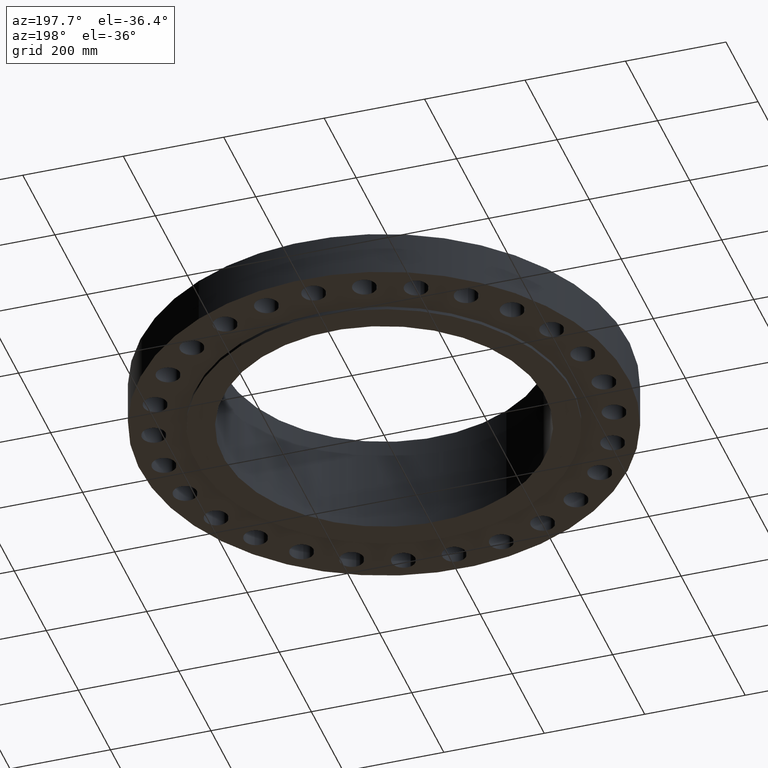
[diagram: clean part render]
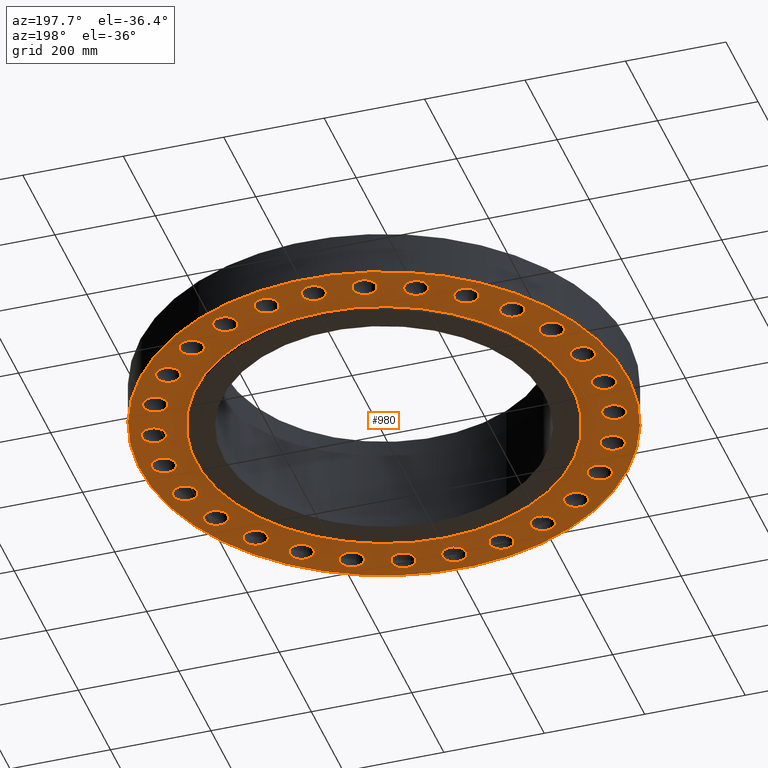
[diagram: same view with one face highlighted and labeled with its STEP entity id]
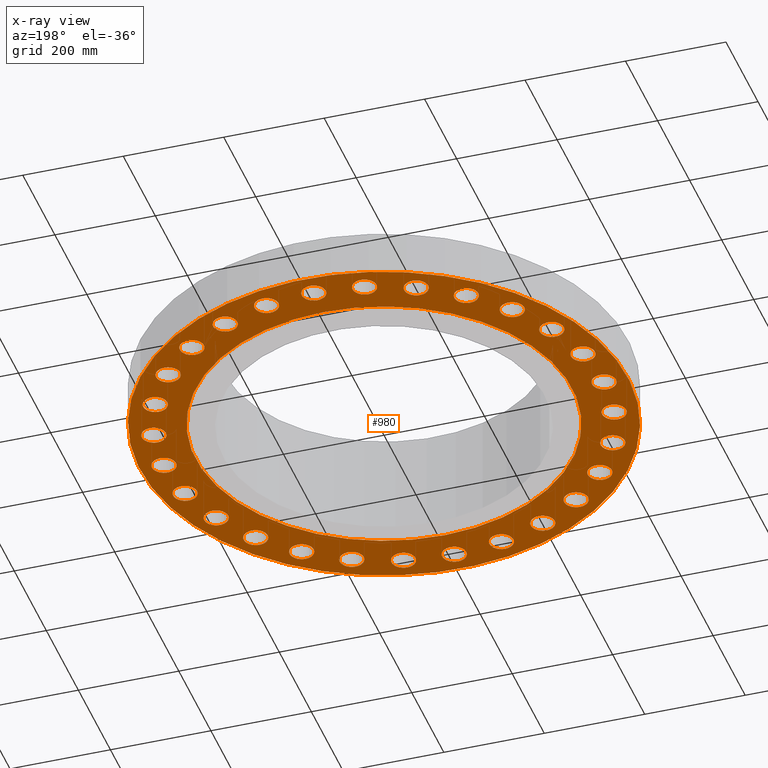
[diagram: x-ray of the same camera — body ghosted, the highlighted face saturated]
A machine part, auxiliary view. The second image highlights one B-rep face of the part: STEP entity #980.
The next image is the same camera in x-ray: the body ghosted, the highlighted face saturated — about 0% of this face is hidden behind the body in this view.
In plain terms, the highlighted planar face has unit normal (0, 0, -1).
Its self-contained STEP definition (entity closure, byte-faithful):
#51=AXIS2_PLACEMENT_3D('Circle Axis2P3D',#49,#50,$) ;
#77=AXIS2_PLACEMENT_3D('Circle Axis2P3D',#75,#76,$) ;
#99=AXIS2_PLACEMENT_3D('Circle Axis2P3D',#97,#98,$) ;
#134=AXIS2_PLACEMENT_3D('Circle Axis2P3D',#132,#133,$) ;
#448=AXIS2_PLACEMENT_3D('Circle Axis2P3D',#446,#447,$) ;
#467=AXIS2_PLACEMENT_3D('Circle Axis2P3D',#465,#466,$) ;
#480=AXIS2_PLACEMENT_3D('Plane Axis2P3D',#477,#478,#479) ;
#496=AXIS2_PLACEMENT_3D('Circle Axis2P3D',#494,#495,$) ;
#505=AXIS2_PLACEMENT_3D('Circle Axis2P3D',#503,#504,$) ;
#514=AXIS2_PLACEMENT_3D('Circle Axis2P3D',#512,#513,$) ;
#523=AXIS2_PLACEMENT_3D('Circle Axis2P3D',#521,#522,$) ;
#532=AXIS2_PLACEMENT_3D('Circle Axis2P3D',#530,#531,$) ;
#541=AXIS2_PLACEMENT_3D('Circle Axis2P3D',#539,#540,$) ;
#550=AXIS2_PLACEMENT_3D('Circle Axis2P3D',#548,#549,$) ;
#559=AXIS2_PLACEMENT_3D('Circle Axis2P3D',#557,#558,$) ;
#568=AXIS2_PLACEMENT_3D('Circle Axis2P3D',#566,#567,$) ;
#577=AXIS2_PLACEMENT_3D('Circle Axis2P3D',#575,#576,$) ;
#586=AXIS2_PLACEMENT_3D('Circle Axis2P3D',#584,#585,$) ;
#595=AXIS2_PLACEMENT_3D('Circle Axis2P3D',#593,#594,$) ;
#604=AXIS2_PLACEMENT_3D('Circle Axis2P3D',#602,#603,$) ;
#613=AXIS2_PLACEMENT_3D('Circle Axis2P3D',#611,#612,$) ;
#622=AXIS2_PLACEMENT_3D('Circle Axis2P3D',#620,#621,$) ;
#631=AXIS2_PLACEMENT_3D('Circle Axis2P3D',#629,#630,$) ;
#640=AXIS2_PLACEMENT_3D('Circle Axis2P3D',#638,#639,$) ;
#649=AXIS2_PLACEMENT_3D('Circle Axis2P3D',#647,#648,$) ;
#658=AXIS2_PLACEMENT_3D('Circle Axis2P3D',#656,#657,$) ;
#667=AXIS2_PLACEMENT_3D('Circle Axis2P3D',#665,#666,$) ;
#676=AXIS2_PLACEMENT_3D('Circle Axis2P3D',#674,#675,$) ;
#685=AXIS2_PLACEMENT_3D('Circle Axis2P3D',#683,#684,$) ;
#694=AXIS2_PLACEMENT_3D('Circle Axis2P3D',#692,#693,$) ;
#703=AXIS2_PLACEMENT_3D('Circle Axis2P3D',#701,#702,$) ;
#712=AXIS2_PLACEMENT_3D('Circle Axis2P3D',#710,#711,$) ;
#721=AXIS2_PLACEMENT_3D('Circle Axis2P3D',#719,#720,$) ;
#730=AXIS2_PLACEMENT_3D('Circle Axis2P3D',#728,#729,$) ;
#739=AXIS2_PLACEMENT_3D('Circle Axis2P3D',#737,#738,$) ;
#748=AXIS2_PLACEMENT_3D('Circle Axis2P3D',#746,#747,$) ;
#757=AXIS2_PLACEMENT_3D('Circle Axis2P3D',#755,#756,$) ;
#766=AXIS2_PLACEMENT_3D('Circle Axis2P3D',#764,#765,$) ;
#775=AXIS2_PLACEMENT_3D('Circle Axis2P3D',#773,#774,$) ;
#784=AXIS2_PLACEMENT_3D('Circle Axis2P3D',#782,#783,$) ;
#793=AXIS2_PLACEMENT_3D('Circle Axis2P3D',#791,#792,$) ;
#802=AXIS2_PLACEMENT_3D('Circle Axis2P3D',#800,#801,$) ;
#811=AXIS2_PLACEMENT_3D('Circle Axis2P3D',#809,#810,$) ;
#820=AXIS2_PLACEMENT_3D('Circle Axis2P3D',#818,#819,$) ;
#829=AXIS2_PLACEMENT_3D('Circle Axis2P3D',#827,#828,$) ;
#838=AXIS2_PLACEMENT_3D('Circle Axis2P3D',#836,#837,$) ;
#847=AXIS2_PLACEMENT_3D('Circle Axis2P3D',#845,#846,$) ;
#856=AXIS2_PLACEMENT_3D('Circle Axis2P3D',#854,#855,$) ;
#865=AXIS2_PLACEMENT_3D('Circle Axis2P3D',#863,#864,$) ;
#874=AXIS2_PLACEMENT_3D('Circle Axis2P3D',#872,#873,$) ;
#883=AXIS2_PLACEMENT_3D('Circle Axis2P3D',#881,#882,$) ;
#892=AXIS2_PLACEMENT_3D('Circle Axis2P3D',#890,#891,$) ;
#901=AXIS2_PLACEMENT_3D('Circle Axis2P3D',#899,#900,$) ;
#910=AXIS2_PLACEMENT_3D('Circle Axis2P3D',#908,#909,$) ;
#919=AXIS2_PLACEMENT_3D('Circle Axis2P3D',#917,#918,$) ;
#928=AXIS2_PLACEMENT_3D('Circle Axis2P3D',#926,#927,$) ;
#937=AXIS2_PLACEMENT_3D('Circle Axis2P3D',#935,#936,$) ;
#946=AXIS2_PLACEMENT_3D('Circle Axis2P3D',#944,#945,$) ;
#955=AXIS2_PLACEMENT_3D('Circle Axis2P3D',#953,#954,$) ;
#964=AXIS2_PLACEMENT_3D('Circle Axis2P3D',#962,#963,$) ;
#973=AXIS2_PLACEMENT_3D('Circle Axis2P3D',#971,#972,$) ;
#44=CARTESIAN_POINT('Vertex',(16.4250723919,0.45066000629,0.)) ;
#49=CARTESIAN_POINT('Axis2P3D Location',(17.2500000001,0.,0.)) ;
#53=CARTESIAN_POINT('Vertex',(18.0749276082,-0.45066000629,0.)) ;
#75=CARTESIAN_POINT('Axis2P3D Location',(17.2500000001,0.,0.)) ;
#97=CARTESIAN_POINT('Axis2P3D Location',(0.,0.,2.23792987641E-015)) ;
#101=CARTESIAN_POINT('Vertex',(-9.16901342584,-16.7837664962,2.23792987641E-015)) ;
#103=CARTESIAN_POINT('Vertex',(9.16901342584,16.7837664962,2.23792987641E-015)) ;
#132=CARTESIAN_POINT('Axis2P3D Location',(0.,0.,2.23792987641E-015)) ;
#443=CARTESIAN_POINT('Vertex',(-7.07152669444,-12.9443427879,1.1189649382E-015)) ;
#446=CARTESIAN_POINT('Axis2P3D Location',(0.,0.,1.67844740731E-015)) ;
#450=CARTESIAN_POINT('Vertex',(7.07152669444,12.9443427879,1.1189649382E-015)) ;
#465=CARTESIAN_POINT('Axis2P3D Location',(0.,0.,1.67844740731E-015)) ;
#477=CARTESIAN_POINT('Axis2P3D Location',(0.,14.7500000001,0.)) ;
#494=CARTESIAN_POINT('Axis2P3D Location',(16.8175064852,-3.83848611076,0.)) ;
#498=CARTESIAN_POINT('Vertex',(16.11354282,-3.21556142991,0.)) ;
#500=CARTESIAN_POINT('Vertex',(17.5214701505,-4.46141079162,0.)) ;
#503=CARTESIAN_POINT('Axis2P3D Location',(16.8175064852,-3.83848611076,0.)) ;
#512=CARTESIAN_POINT('Axis2P3D Location',(15.5417129714,-7.48449449981,0.)) ;
#516=CARTESIAN_POINT('Vertex',(14.9940129267,-6.72054118899,0.)) ;
#518=CARTESIAN_POINT('Vertex',(16.089413016,-8.24844781062,0.)) ;
#521=CARTESIAN_POINT('Axis2P3D Location',(15.5417129714,-7.48449449981,0.)) ;
#530=CARTESIAN_POINT('Axis2P3D Location',(13.4865930726,-10.7551990821,0.)) ;
#534=CARTESIAN_POINT('Vertex',(13.1226206158,-9.88852495033,0.)) ;
#536=CARTESIAN_POINT('Vertex',(13.8505655294,-11.6218732139,-3.35689481461E-015)) ;
#539=CARTESIAN_POINT('Axis2P3D Location',(13.4865930726,-10.7551990821,0.)) ;
#548=CARTESIAN_POINT('Axis2P3D Location',(10.7551990821,-13.4865930726,0.)) ;
#552=CARTESIAN_POINT('Vertex',(10.5932053119,-12.5606567798,0.)) ;
#554=CARTESIAN_POINT('Vertex',(10.9171928523,-14.4125293655,0.)) ;
#557=CARTESIAN_POINT('Axis2P3D Location',(10.7551990821,-13.4865930726,0.)) ;
#566=CARTESIAN_POINT('Axis2P3D Location',(7.48449449981,-15.5417129714,0.)) ;
#570=CARTESIAN_POINT('Vertex',(7.53260246035,-14.6029448295,0.)) ;
#572=CARTESIAN_POINT('Vertex',(7.43638653927,-16.4804811132,0.)) ;
#575=CARTESIAN_POINT('Axis2P3D Location',(7.48449449981,-15.5417129714,0.)) ;
#584=CARTESIAN_POINT('Axis2P3D Location',(3.83848611076,-16.8175064852,0.)) ;
#588=CARTESIAN_POINT('Vertex',(4.09428346798,-15.912980249,0.)) ;
#590=CARTESIAN_POINT('Vertex',(3.58268875354,-17.7220327214,0.)) ;
#593=CARTESIAN_POINT('Axis2P3D Location',(3.83848611076,-16.8175064852,0.)) ;
#602=CARTESIAN_POINT('Axis2P3D Location',(3.91637728372E-015,-17.2500000001,0.)) ;
#606=CARTESIAN_POINT('Vertex',(0.45066000629,-16.4250723919,0.)) ;
#608=CARTESIAN_POINT('Vertex',(-0.45066000629,-18.0749276082,0.)) ;
#611=CARTESIAN_POINT('Axis2P3D Location',(3.07715358006E-015,-17.2500000001,0.)) ;
#620=CARTESIAN_POINT('Axis2P3D Location',(-3.83848611076,-16.8175064852,0.)) ;
#624=CARTESIAN_POINT('Vertex',(-3.21556142991,-16.11354282,0.)) ;
#626=CARTESIAN_POINT('Vertex',(-4.46141079162,-17.5214701505,-3.35689481461E-015)) ;
#629=CARTESIAN_POINT('Axis2P3D Location',(-3.83848611076,-16.8175064852,0.)) ;
#638=CARTESIAN_POINT('Axis2P3D Location',(-7.48449449981,-15.5417129714,0.)) ;
#642=CARTESIAN_POINT('Vertex',(-6.72054118899,-14.9940129267,0.)) ;
#644=CARTESIAN_POINT('Vertex',(-8.24844781062,-16.089413016,0.)) ;
#647=CARTESIAN_POINT('Axis2P3D Location',(-7.48449449981,-15.5417129714,0.)) ;
#656=CARTESIAN_POINT('Axis2P3D Location',(-10.7551990821,-13.4865930726,0.)) ;
#660=CARTESIAN_POINT('Vertex',(-9.88852495033,-13.1226206158,0.)) ;
#662=CARTESIAN_POINT('Vertex',(-11.6218732139,-13.8505655294,0.)) ;
#665=CARTESIAN_POINT('Axis2P3D Location',(-10.7551990821,-13.4865930726,0.)) ;
#674=CARTESIAN_POINT('Axis2P3D Location',(-13.4865930726,-10.7551990821,0.)) ;
#678=CARTESIAN_POINT('Vertex',(-12.5606567798,-10.5932053119,0.)) ;
#680=CARTESIAN_POINT('Vertex',(-14.4125293655,-10.9171928523,0.)) ;
#683=CARTESIAN_POINT('Axis2P3D Location',(-13.4865930726,-10.7551990821,0.)) ;
#692=CARTESIAN_POINT('Axis2P3D Location',(-15.5417129714,-7.48449449981,0.)) ;
#696=CARTESIAN_POINT('Vertex',(-14.6029448295,-7.53260246035,0.)) ;
#698=CARTESIAN_POINT('Vertex',(-16.4804811132,-7.43638653927,-3.35689481461E-015)) ;
#701=CARTESIAN_POINT('Axis2P3D Location',(-15.5417129714,-7.48449449981,0.)) ;
#710=CARTESIAN_POINT('Axis2P3D Location',(-16.8175064852,-3.83848611076,0.)) ;
#714=CARTESIAN_POINT('Vertex',(-15.912980249,-4.09428346798,0.)) ;
#716=CARTESIAN_POINT('Vertex',(-17.7220327214,-3.58268875354,0.)) ;
#719=CARTESIAN_POINT('Axis2P3D Location',(-16.8175064852,-3.83848611076,0.)) ;
#728=CARTESIAN_POINT('Axis2P3D Location',(-17.2500000001,-8.95171950564E-015,0.)) ;
#732=CARTESIAN_POINT('Vertex',(-16.4250723919,-0.45066000629,0.)) ;
#734=CARTESIAN_POINT('Vertex',(-18.0749276082,0.45066000629,0.)) ;
#737=CARTESIAN_POINT('Axis2P3D Location',(-17.2500000001,-8.95171950564E-015,0.)) ;
#746=CARTESIAN_POINT('Axis2P3D Location',(-16.8175064852,3.83848611076,0.)) ;
#750=CARTESIAN_POINT('Vertex',(-16.11354282,3.21556142991,0.)) ;
#752=CARTESIAN_POINT('Vertex',(-17.5214701505,4.46141079162,0.)) ;
#755=CARTESIAN_POINT('Axis2P3D Location',(-16.8175064852,3.83848611076,0.)) ;
#764=CARTESIAN_POINT('Axis2P3D Location',(-15.5417129714,7.48449449981,0.)) ;
#768=CARTESIAN_POINT('Vertex',(-14.9940129267,6.72054118899,0.)) ;
#770=CARTESIAN_POINT('Vertex',(-16.089413016,8.24844781062,0.)) ;
#773=CARTESIAN_POINT('Axis2P3D Location',(-15.5417129714,7.48449449981,0.)) ;
#782=CARTESIAN_POINT('Axis2P3D Location',(-13.4865930726,10.7551990821,0.)) ;
#786=CARTESIAN_POINT('Vertex',(-13.1226206158,9.88852495033,0.)) ;
#788=CARTESIAN_POINT('Vertex',(-13.8505655294,11.6218732139,0.)) ;
#791=CARTESIAN_POINT('Axis2P3D Location',(-13.4865930726,10.7551990821,0.)) ;
#800=CARTESIAN_POINT('Axis2P3D Location',(-10.7551990821,13.4865930726,0.)) ;
#804=CARTESIAN_POINT('Vertex',(-10.5932053119,12.5606567798,0.)) ;
#806=CARTESIAN_POINT('Vertex',(-10.9171928523,14.4125293655,0.)) ;
#809=CARTESIAN_POINT('Axis2P3D Location',(-10.7551990821,13.4865930726,0.)) ;
#818=CARTESIAN_POINT('Axis2P3D Location',(-7.48449449981,15.5417129714,0.)) ;
#822=CARTESIAN_POINT('Vertex',(-7.53260246035,14.6029448295,0.)) ;
#824=CARTESIAN_POINT('Vertex',(-7.43638653927,16.4804811132,0.)) ;
#827=CARTESIAN_POINT('Axis2P3D Location',(-7.48449449981,15.5417129714,0.)) ;
#836=CARTESIAN_POINT('Axis2P3D Location',(-3.83848611076,16.8175064852,0.)) ;
#840=CARTESIAN_POINT('Vertex',(-4.09428346798,15.912980249,0.)) ;
#842=CARTESIAN_POINT('Vertex',(-3.58268875354,17.7220327214,0.)) ;
#845=CARTESIAN_POINT('Axis2P3D Location',(-3.83848611076,16.8175064852,0.)) ;
#854=CARTESIAN_POINT('Axis2P3D Location',(-1.39870617276E-015,17.2500000001,0.)) ;
#858=CARTESIAN_POINT('Vertex',(-0.45066000629,16.4250723919,0.)) ;
#860=CARTESIAN_POINT('Vertex',(0.45066000629,18.0749276082,0.)) ;
#863=CARTESIAN_POINT('Axis2P3D Location',(-8.39223703654E-016,17.2500000001,0.)) ;
#872=CARTESIAN_POINT('Axis2P3D Location',(3.83848611076,16.8175064852,0.)) ;
#876=CARTESIAN_POINT('Vertex',(3.21556142991,16.11354282,0.)) ;
#878=CARTESIAN_POINT('Vertex',(4.46141079162,17.5214701505,0.)) ;
#881=CARTESIAN_POINT('Axis2P3D Location',(3.83848611076,16.8175064852,0.)) ;
#890=CARTESIAN_POINT('Axis2P3D Location',(7.48449449981,15.5417129714,0.)) ;
#894=CARTESIAN_POINT('Vertex',(6.72054118899,14.9940129267,0.)) ;
#896=CARTESIAN_POINT('Vertex',(8.24844781062,16.089413016,0.)) ;
#899=CARTESIAN_POINT('Axis2P3D Location',(7.48449449981,15.5417129714,0.)) ;
#908=CARTESIAN_POINT('Axis2P3D Location',(10.7551990821,13.4865930726,0.)) ;
#912=CARTESIAN_POINT('Vertex',(9.88852495033,13.1226206158,0.)) ;
#914=CARTESIAN_POINT('Vertex',(11.6218732139,13.8505655294,0.)) ;
#917=CARTESIAN_POINT('Axis2P3D Location',(10.7551990821,13.4865930726,0.)) ;
#926=CARTESIAN_POINT('Axis2P3D Location',(13.4865930726,10.7551990821,0.)) ;
#930=CARTESIAN_POINT('Vertex',(12.5606567798,10.5932053119,0.)) ;
#932=CARTESIAN_POINT('Vertex',(14.4125293655,10.9171928523,0.)) ;
#935=CARTESIAN_POINT('Axis2P3D Location',(13.4865930726,10.7551990821,0.)) ;
#944=CARTESIAN_POINT('Axis2P3D Location',(15.5417129714,7.48449449981,0.)) ;
#948=CARTESIAN_POINT('Vertex',(14.6029448295,7.53260246035,0.)) ;
#950=CARTESIAN_POINT('Vertex',(16.4804811132,7.43638653927,0.)) ;
#953=CARTESIAN_POINT('Axis2P3D Location',(15.5417129714,7.48449449981,0.)) ;
#962=CARTESIAN_POINT('Axis2P3D Location',(16.8175064852,3.83848611076,0.)) ;
#966=CARTESIAN_POINT('Vertex',(15.912980249,4.09428346798,0.)) ;
#968=CARTESIAN_POINT('Vertex',(17.7220327214,3.58268875354,0.)) ;
#971=CARTESIAN_POINT('Axis2P3D Location',(16.8175064852,3.83848611076,0.)) ;
#50=DIRECTION('Axis2P3D Direction',(0.,-0.,-0.0393700787402)) ;
#76=DIRECTION('Axis2P3D Direction',(0.,-0.,-0.0393700787402)) ;
#98=DIRECTION('Axis2P3D Direction',(0.,0.,-0.0393700787402)) ;
#133=DIRECTION('Axis2P3D Direction',(0.,0.,-0.0393700787402)) ;
#447=DIRECTION('Axis2P3D Direction',(0.,0.,-0.0393700787402)) ;
#466=DIRECTION('Axis2P3D Direction',(0.,0.,-0.0393700787402)) ;
#478=DIRECTION('Axis2P3D Direction',(0.,0.,-0.0393700787402)) ;
#479=DIRECTION('Axis2P3D XDirection',(0.0393700787402,0.,0.)) ;
#495=DIRECTION('Axis2P3D Direction',(0.,0.,-0.0393700787402)) ;
#504=DIRECTION('Axis2P3D Direction',(0.,0.,-0.0393700787402)) ;
#513=DIRECTION('Axis2P3D Direction',(0.,0.,-0.0393700787402)) ;
#522=DIRECTION('Axis2P3D Direction',(0.,0.,-0.0393700787402)) ;
#531=DIRECTION('Axis2P3D Direction',(0.,0.,-0.0393700787402)) ;
#540=DIRECTION('Axis2P3D Direction',(0.,0.,-0.0393700787402)) ;
#549=DIRECTION('Axis2P3D Direction',(0.,0.,-0.0393700787402)) ;
#558=DIRECTION('Axis2P3D Direction',(0.,0.,-0.0393700787402)) ;
#567=DIRECTION('Axis2P3D Direction',(0.,0.,-0.0393700787402)) ;
#576=DIRECTION('Axis2P3D Direction',(0.,0.,-0.0393700787402)) ;
#585=DIRECTION('Axis2P3D Direction',(0.,0.,-0.0393700787402)) ;
#594=DIRECTION('Axis2P3D Direction',(0.,0.,-0.0393700787402)) ;
#603=DIRECTION('Axis2P3D Direction',(0.,0.,-0.0393700787402)) ;
#612=DIRECTION('Axis2P3D Direction',(0.,0.,-0.0393700787402)) ;
#621=DIRECTION('Axis2P3D Direction',(0.,0.,-0.0393700787402)) ;
#630=DIRECTION('Axis2P3D Direction',(0.,0.,-0.0393700787402)) ;
#639=DIRECTION('Axis2P3D Direction',(0.,0.,-0.0393700787402)) ;
#648=DIRECTION('Axis2P3D Direction',(0.,0.,-0.0393700787402)) ;
#657=DIRECTION('Axis2P3D Direction',(0.,0.,-0.0393700787402)) ;
#666=DIRECTION('Axis2P3D Direction',(0.,0.,-0.0393700787402)) ;
#675=DIRECTION('Axis2P3D Direction',(0.,0.,-0.0393700787402)) ;
#684=DIRECTION('Axis2P3D Direction',(0.,0.,-0.0393700787402)) ;
#693=DIRECTION('Axis2P3D Direction',(0.,0.,-0.0393700787402)) ;
#702=DIRECTION('Axis2P3D Direction',(0.,0.,-0.0393700787402)) ;
#711=DIRECTION('Axis2P3D Direction',(0.,0.,-0.0393700787402)) ;
#720=DIRECTION('Axis2P3D Direction',(0.,0.,-0.0393700787402)) ;
#729=DIRECTION('Axis2P3D Direction',(0.,0.,-0.0393700787402)) ;
#738=DIRECTION('Axis2P3D Direction',(0.,0.,-0.0393700787402)) ;
#747=DIRECTION('Axis2P3D Direction',(0.,0.,-0.0393700787402)) ;
#756=DIRECTION('Axis2P3D Direction',(0.,0.,-0.0393700787402)) ;
#765=DIRECTION('Axis2P3D Direction',(0.,0.,-0.0393700787402)) ;
#774=DIRECTION('Axis2P3D Direction',(0.,0.,-0.0393700787402)) ;
#783=DIRECTION('Axis2P3D Direction',(0.,0.,-0.0393700787402)) ;
#792=DIRECTION('Axis2P3D Direction',(0.,0.,-0.0393700787402)) ;
#801=DIRECTION('Axis2P3D Direction',(0.,0.,-0.0393700787402)) ;
#810=DIRECTION('Axis2P3D Direction',(0.,0.,-0.0393700787402)) ;
#819=DIRECTION('Axis2P3D Direction',(0.,0.,-0.0393700787402)) ;
#828=DIRECTION('Axis2P3D Direction',(0.,0.,-0.0393700787402)) ;
#837=DIRECTION('Axis2P3D Direction',(0.,0.,-0.0393700787402)) ;
#846=DIRECTION('Axis2P3D Direction',(0.,0.,-0.0393700787402)) ;
#855=DIRECTION('Axis2P3D Direction',(0.,0.,-0.0393700787402)) ;
#864=DIRECTION('Axis2P3D Direction',(0.,0.,-0.0393700787402)) ;
#873=DIRECTION('Axis2P3D Direction',(0.,0.,-0.0393700787402)) ;
#882=DIRECTION('Axis2P3D Direction',(0.,0.,-0.0393700787402)) ;
#891=DIRECTION('Axis2P3D Direction',(0.,0.,-0.0393700787402)) ;
#900=DIRECTION('Axis2P3D Direction',(0.,0.,-0.0393700787402)) ;
#909=DIRECTION('Axis2P3D Direction',(0.,0.,-0.0393700787402)) ;
#918=DIRECTION('Axis2P3D Direction',(0.,0.,-0.0393700787402)) ;
#927=DIRECTION('Axis2P3D Direction',(0.,0.,-0.0393700787402)) ;
#936=DIRECTION('Axis2P3D Direction',(0.,0.,-0.0393700787402)) ;
#945=DIRECTION('Axis2P3D Direction',(0.,0.,-0.0393700787402)) ;
#954=DIRECTION('Axis2P3D Direction',(0.,0.,-0.0393700787402)) ;
#963=DIRECTION('Axis2P3D Direction',(0.,0.,-0.0393700787402)) ;
#972=DIRECTION('Axis2P3D Direction',(0.,0.,-0.0393700787402)) ;
#483=ORIENTED_EDGE('',*,*,#105,.T.) ;
#484=ORIENTED_EDGE('',*,*,#136,.T.) ;
#487=ORIENTED_EDGE('',*,*,#79,.F.) ;
#488=ORIENTED_EDGE('',*,*,#55,.F.) ;
#491=ORIENTED_EDGE('',*,*,#469,.F.) ;
#492=ORIENTED_EDGE('',*,*,#452,.F.) ;
#509=ORIENTED_EDGE('',*,*,#502,.F.) ;
#510=ORIENTED_EDGE('',*,*,#507,.F.) ;
#527=ORIENTED_EDGE('',*,*,#520,.F.) ;
#528=ORIENTED_EDGE('',*,*,#525,.F.) ;
#545=ORIENTED_EDGE('',*,*,#538,.F.) ;
#546=ORIENTED_EDGE('',*,*,#543,.F.) ;
#563=ORIENTED_EDGE('',*,*,#556,.F.) ;
#564=ORIENTED_EDGE('',*,*,#561,.F.) ;
#581=ORIENTED_EDGE('',*,*,#574,.F.) ;
#582=ORIENTED_EDGE('',*,*,#579,.F.) ;
#599=ORIENTED_EDGE('',*,*,#592,.F.) ;
#600=ORIENTED_EDGE('',*,*,#597,.F.) ;
#617=ORIENTED_EDGE('',*,*,#610,.F.) ;
#618=ORIENTED_EDGE('',*,*,#615,.F.) ;
#635=ORIENTED_EDGE('',*,*,#628,.F.) ;
#636=ORIENTED_EDGE('',*,*,#633,.F.) ;
#653=ORIENTED_EDGE('',*,*,#646,.F.) ;
#654=ORIENTED_EDGE('',*,*,#651,.F.) ;
#671=ORIENTED_EDGE('',*,*,#664,.F.) ;
#672=ORIENTED_EDGE('',*,*,#669,.F.) ;
#689=ORIENTED_EDGE('',*,*,#682,.F.) ;
#690=ORIENTED_EDGE('',*,*,#687,.F.) ;
#707=ORIENTED_EDGE('',*,*,#700,.F.) ;
#708=ORIENTED_EDGE('',*,*,#705,.F.) ;
#725=ORIENTED_EDGE('',*,*,#718,.F.) ;
#726=ORIENTED_EDGE('',*,*,#723,.F.) ;
#743=ORIENTED_EDGE('',*,*,#736,.F.) ;
#744=ORIENTED_EDGE('',*,*,#741,.F.) ;
#761=ORIENTED_EDGE('',*,*,#754,.F.) ;
#762=ORIENTED_EDGE('',*,*,#759,.F.) ;
#779=ORIENTED_EDGE('',*,*,#772,.F.) ;
#780=ORIENTED_EDGE('',*,*,#777,.F.) ;
#797=ORIENTED_EDGE('',*,*,#790,.F.) ;
#798=ORIENTED_EDGE('',*,*,#795,.F.) ;
#815=ORIENTED_EDGE('',*,*,#808,.F.) ;
#816=ORIENTED_EDGE('',*,*,#813,.F.) ;
#833=ORIENTED_EDGE('',*,*,#826,.F.) ;
#834=ORIENTED_EDGE('',*,*,#831,.F.) ;
#851=ORIENTED_EDGE('',*,*,#844,.F.) ;
#852=ORIENTED_EDGE('',*,*,#849,.F.) ;
#869=ORIENTED_EDGE('',*,*,#862,.F.) ;
#870=ORIENTED_EDGE('',*,*,#867,.F.) ;
#887=ORIENTED_EDGE('',*,*,#880,.F.) ;
#888=ORIENTED_EDGE('',*,*,#885,.F.) ;
#905=ORIENTED_EDGE('',*,*,#898,.F.) ;
#906=ORIENTED_EDGE('',*,*,#903,.F.) ;
#923=ORIENTED_EDGE('',*,*,#916,.F.) ;
#924=ORIENTED_EDGE('',*,*,#921,.F.) ;
#941=ORIENTED_EDGE('',*,*,#934,.F.) ;
#942=ORIENTED_EDGE('',*,*,#939,.F.) ;
#959=ORIENTED_EDGE('',*,*,#952,.F.) ;
#960=ORIENTED_EDGE('',*,*,#957,.F.) ;
#977=ORIENTED_EDGE('',*,*,#970,.F.) ;
#978=ORIENTED_EDGE('',*,*,#975,.F.) ;
#489=FACE_BOUND('',#486,.T.) ;
#493=FACE_BOUND('',#490,.T.) ;
#511=FACE_BOUND('',#508,.T.) ;
#529=FACE_BOUND('',#526,.T.) ;
#547=FACE_BOUND('',#544,.T.) ;
#565=FACE_BOUND('',#562,.T.) ;
#583=FACE_BOUND('',#580,.T.) ;
#601=FACE_BOUND('',#598,.T.) ;
#619=FACE_BOUND('',#616,.T.) ;
#637=FACE_BOUND('',#634,.T.) ;
#655=FACE_BOUND('',#652,.T.) ;
#673=FACE_BOUND('',#670,.T.) ;
#691=FACE_BOUND('',#688,.T.) ;
#709=FACE_BOUND('',#706,.T.) ;
#727=FACE_BOUND('',#724,.T.) ;
#745=FACE_BOUND('',#742,.T.) ;
#763=FACE_BOUND('',#760,.T.) ;
#781=FACE_BOUND('',#778,.T.) ;
#799=FACE_BOUND('',#796,.T.) ;
#817=FACE_BOUND('',#814,.T.) ;
#835=FACE_BOUND('',#832,.T.) ;
#853=FACE_BOUND('',#850,.T.) ;
#871=FACE_BOUND('',#868,.T.) ;
#889=FACE_BOUND('',#886,.T.) ;
#907=FACE_BOUND('',#904,.T.) ;
#925=FACE_BOUND('',#922,.T.) ;
#943=FACE_BOUND('',#940,.T.) ;
#961=FACE_BOUND('',#958,.T.) ;
#979=FACE_BOUND('',#976,.T.) ;
#980=ADVANCED_FACE('PartBody',(#485,#489,#493,#511,#529,#547,#565,#583,#601,#619,#637,#655,#673,#691,#709,#727,#745,#763,#781,#799,#817,#835,#853,#871,#889,#907,#925,#943,#961,#979),#481,.T.) ;
#52=CIRCLE('generated circle',#51,0.940000000004) ;
#78=CIRCLE('generated circle',#77,0.940000000004) ;
#100=CIRCLE('generated circle',#99,19.1250000001) ;
#135=CIRCLE('generated circle',#134,19.1250000001) ;
#449=CIRCLE('generated circle',#448,14.7500000001) ;
#468=CIRCLE('generated circle',#467,14.7500000001) ;
#497=CIRCLE('generated circle',#496,0.940000000004) ;
#506=CIRCLE('generated circle',#505,0.940000000004) ;
#515=CIRCLE('generated circle',#514,0.940000000004) ;
#524=CIRCLE('generated circle',#523,0.940000000004) ;
#533=CIRCLE('generated circle',#532,0.940000000004) ;
#542=CIRCLE('generated circle',#541,0.940000000004) ;
#551=CIRCLE('generated circle',#550,0.940000000004) ;
#560=CIRCLE('generated circle',#559,0.940000000004) ;
#569=CIRCLE('generated circle',#568,0.940000000004) ;
#578=CIRCLE('generated circle',#577,0.940000000004) ;
#587=CIRCLE('generated circle',#586,0.940000000004) ;
#596=CIRCLE('generated circle',#595,0.940000000004) ;
#605=CIRCLE('generated circle',#604,0.940000000004) ;
#614=CIRCLE('generated circle',#613,0.940000000004) ;
#623=CIRCLE('generated circle',#622,0.940000000004) ;
#632=CIRCLE('generated circle',#631,0.940000000004) ;
#641=CIRCLE('generated circle',#640,0.940000000004) ;
#650=CIRCLE('generated circle',#649,0.940000000004) ;
#659=CIRCLE('generated circle',#658,0.940000000004) ;
#668=CIRCLE('generated circle',#667,0.940000000004) ;
#677=CIRCLE('generated circle',#676,0.940000000004) ;
#686=CIRCLE('generated circle',#685,0.940000000004) ;
#695=CIRCLE('generated circle',#694,0.940000000004) ;
#704=CIRCLE('generated circle',#703,0.940000000004) ;
#713=CIRCLE('generated circle',#712,0.940000000004) ;
#722=CIRCLE('generated circle',#721,0.940000000004) ;
#731=CIRCLE('generated circle',#730,0.940000000004) ;
#740=CIRCLE('generated circle',#739,0.940000000004) ;
#749=CIRCLE('generated circle',#748,0.940000000004) ;
#758=CIRCLE('generated circle',#757,0.940000000004) ;
#767=CIRCLE('generated circle',#766,0.940000000004) ;
#776=CIRCLE('generated circle',#775,0.940000000004) ;
#785=CIRCLE('generated circle',#784,0.940000000004) ;
#794=CIRCLE('generated circle',#793,0.940000000004) ;
#803=CIRCLE('generated circle',#802,0.940000000004) ;
#812=CIRCLE('generated circle',#811,0.940000000004) ;
#821=CIRCLE('generated circle',#820,0.940000000004) ;
#830=CIRCLE('generated circle',#829,0.940000000004) ;
#839=CIRCLE('generated circle',#838,0.940000000004) ;
#848=CIRCLE('generated circle',#847,0.940000000004) ;
#857=CIRCLE('generated circle',#856,0.940000000004) ;
#866=CIRCLE('generated circle',#865,0.940000000004) ;
#875=CIRCLE('generated circle',#874,0.940000000004) ;
#884=CIRCLE('generated circle',#883,0.940000000004) ;
#893=CIRCLE('generated circle',#892,0.940000000004) ;
#902=CIRCLE('generated circle',#901,0.940000000004) ;
#911=CIRCLE('generated circle',#910,0.940000000004) ;
#920=CIRCLE('generated circle',#919,0.940000000004) ;
#929=CIRCLE('generated circle',#928,0.940000000004) ;
#938=CIRCLE('generated circle',#937,0.940000000004) ;
#947=CIRCLE('generated circle',#946,0.940000000004) ;
#956=CIRCLE('generated circle',#955,0.940000000004) ;
#965=CIRCLE('generated circle',#964,0.940000000004) ;
#974=CIRCLE('generated circle',#973,0.940000000004) ;
#55=EDGE_CURVE('',#45,#54,#52,.T.) ;
#79=EDGE_CURVE('',#54,#45,#78,.T.) ;
#105=EDGE_CURVE('',#102,#104,#100,.T.) ;
#136=EDGE_CURVE('',#104,#102,#135,.T.) ;
#452=EDGE_CURVE('',#444,#451,#449,.T.) ;
#469=EDGE_CURVE('',#451,#444,#468,.T.) ;
#502=EDGE_CURVE('',#499,#501,#497,.T.) ;
#507=EDGE_CURVE('',#501,#499,#506,.T.) ;
#520=EDGE_CURVE('',#517,#519,#515,.T.) ;
#525=EDGE_CURVE('',#519,#517,#524,.T.) ;
#538=EDGE_CURVE('',#535,#537,#533,.T.) ;
#543=EDGE_CURVE('',#537,#535,#542,.T.) ;
#556=EDGE_CURVE('',#553,#555,#551,.T.) ;
#561=EDGE_CURVE('',#555,#553,#560,.T.) ;
#574=EDGE_CURVE('',#571,#573,#569,.T.) ;
#579=EDGE_CURVE('',#573,#571,#578,.T.) ;
#592=EDGE_CURVE('',#589,#591,#587,.T.) ;
#597=EDGE_CURVE('',#591,#589,#596,.T.) ;
#610=EDGE_CURVE('',#607,#609,#605,.T.) ;
#615=EDGE_CURVE('',#609,#607,#614,.T.) ;
#628=EDGE_CURVE('',#625,#627,#623,.T.) ;
#633=EDGE_CURVE('',#627,#625,#632,.T.) ;
#646=EDGE_CURVE('',#643,#645,#641,.T.) ;
#651=EDGE_CURVE('',#645,#643,#650,.T.) ;
#664=EDGE_CURVE('',#661,#663,#659,.T.) ;
#669=EDGE_CURVE('',#663,#661,#668,.T.) ;
#682=EDGE_CURVE('',#679,#681,#677,.T.) ;
#687=EDGE_CURVE('',#681,#679,#686,.T.) ;
#700=EDGE_CURVE('',#697,#699,#695,.T.) ;
#705=EDGE_CURVE('',#699,#697,#704,.T.) ;
#718=EDGE_CURVE('',#715,#717,#713,.T.) ;
#723=EDGE_CURVE('',#717,#715,#722,.T.) ;
#736=EDGE_CURVE('',#733,#735,#731,.T.) ;
#741=EDGE_CURVE('',#735,#733,#740,.T.) ;
#754=EDGE_CURVE('',#751,#753,#749,.T.) ;
#759=EDGE_CURVE('',#753,#751,#758,.T.) ;
#772=EDGE_CURVE('',#769,#771,#767,.T.) ;
#777=EDGE_CURVE('',#771,#769,#776,.T.) ;
#790=EDGE_CURVE('',#787,#789,#785,.T.) ;
#795=EDGE_CURVE('',#789,#787,#794,.T.) ;
#808=EDGE_CURVE('',#805,#807,#803,.T.) ;
#813=EDGE_CURVE('',#807,#805,#812,.T.) ;
#826=EDGE_CURVE('',#823,#825,#821,.T.) ;
#831=EDGE_CURVE('',#825,#823,#830,.T.) ;
#844=EDGE_CURVE('',#841,#843,#839,.T.) ;
#849=EDGE_CURVE('',#843,#841,#848,.T.) ;
#862=EDGE_CURVE('',#859,#861,#857,.T.) ;
#867=EDGE_CURVE('',#861,#859,#866,.T.) ;
#880=EDGE_CURVE('',#877,#879,#875,.T.) ;
#885=EDGE_CURVE('',#879,#877,#884,.T.) ;
#898=EDGE_CURVE('',#895,#897,#893,.T.) ;
#903=EDGE_CURVE('',#897,#895,#902,.T.) ;
#916=EDGE_CURVE('',#913,#915,#911,.T.) ;
#921=EDGE_CURVE('',#915,#913,#920,.T.) ;
#934=EDGE_CURVE('',#931,#933,#929,.T.) ;
#939=EDGE_CURVE('',#933,#931,#938,.T.) ;
#952=EDGE_CURVE('',#949,#951,#947,.T.) ;
#957=EDGE_CURVE('',#951,#949,#956,.T.) ;
#970=EDGE_CURVE('',#967,#969,#965,.T.) ;
#975=EDGE_CURVE('',#969,#967,#974,.T.) ;
#482=EDGE_LOOP('',(#483,#484)) ;
#486=EDGE_LOOP('',(#487,#488)) ;
#490=EDGE_LOOP('',(#491,#492)) ;
#508=EDGE_LOOP('',(#509,#510)) ;
#526=EDGE_LOOP('',(#527,#528)) ;
#544=EDGE_LOOP('',(#545,#546)) ;
#562=EDGE_LOOP('',(#563,#564)) ;
#580=EDGE_LOOP('',(#581,#582)) ;
#598=EDGE_LOOP('',(#599,#600)) ;
#616=EDGE_LOOP('',(#617,#618)) ;
#634=EDGE_LOOP('',(#635,#636)) ;
#652=EDGE_LOOP('',(#653,#654)) ;
#670=EDGE_LOOP('',(#671,#672)) ;
#688=EDGE_LOOP('',(#689,#690)) ;
#706=EDGE_LOOP('',(#707,#708)) ;
#724=EDGE_LOOP('',(#725,#726)) ;
#742=EDGE_LOOP('',(#743,#744)) ;
#760=EDGE_LOOP('',(#761,#762)) ;
#778=EDGE_LOOP('',(#779,#780)) ;
#796=EDGE_LOOP('',(#797,#798)) ;
#814=EDGE_LOOP('',(#815,#816)) ;
#832=EDGE_LOOP('',(#833,#834)) ;
#850=EDGE_LOOP('',(#851,#852)) ;
#868=EDGE_LOOP('',(#869,#870)) ;
#886=EDGE_LOOP('',(#887,#888)) ;
#904=EDGE_LOOP('',(#905,#906)) ;
#922=EDGE_LOOP('',(#923,#924)) ;
#940=EDGE_LOOP('',(#941,#942)) ;
#958=EDGE_LOOP('',(#959,#960)) ;
#976=EDGE_LOOP('',(#977,#978)) ;
#485=FACE_OUTER_BOUND('',#482,.T.) ;
#481=PLANE('',#480) ;
#45=VERTEX_POINT('',#44) ;
#54=VERTEX_POINT('',#53) ;
#102=VERTEX_POINT('',#101) ;
#104=VERTEX_POINT('',#103) ;
#444=VERTEX_POINT('',#443) ;
#451=VERTEX_POINT('',#450) ;
#499=VERTEX_POINT('',#498) ;
#501=VERTEX_POINT('',#500) ;
#517=VERTEX_POINT('',#516) ;
#519=VERTEX_POINT('',#518) ;
#535=VERTEX_POINT('',#534) ;
#537=VERTEX_POINT('',#536) ;
#553=VERTEX_POINT('',#552) ;
#555=VERTEX_POINT('',#554) ;
#571=VERTEX_POINT('',#570) ;
#573=VERTEX_POINT('',#572) ;
#589=VERTEX_POINT('',#588) ;
#591=VERTEX_POINT('',#590) ;
#607=VERTEX_POINT('',#606) ;
#609=VERTEX_POINT('',#608) ;
#625=VERTEX_POINT('',#624) ;
#627=VERTEX_POINT('',#626) ;
#643=VERTEX_POINT('',#642) ;
#645=VERTEX_POINT('',#644) ;
#661=VERTEX_POINT('',#660) ;
#663=VERTEX_POINT('',#662) ;
#679=VERTEX_POINT('',#678) ;
#681=VERTEX_POINT('',#680) ;
#697=VERTEX_POINT('',#696) ;
#699=VERTEX_POINT('',#698) ;
#715=VERTEX_POINT('',#714) ;
#717=VERTEX_POINT('',#716) ;
#733=VERTEX_POINT('',#732) ;
#735=VERTEX_POINT('',#734) ;
#751=VERTEX_POINT('',#750) ;
#753=VERTEX_POINT('',#752) ;
#769=VERTEX_POINT('',#768) ;
#771=VERTEX_POINT('',#770) ;
#787=VERTEX_POINT('',#786) ;
#789=VERTEX_POINT('',#788) ;
#805=VERTEX_POINT('',#804) ;
#807=VERTEX_POINT('',#806) ;
#823=VERTEX_POINT('',#822) ;
#825=VERTEX_POINT('',#824) ;
#841=VERTEX_POINT('',#840) ;
#843=VERTEX_POINT('',#842) ;
#859=VERTEX_POINT('',#858) ;
#861=VERTEX_POINT('',#860) ;
#877=VERTEX_POINT('',#876) ;
#879=VERTEX_POINT('',#878) ;
#895=VERTEX_POINT('',#894) ;
#897=VERTEX_POINT('',#896) ;
#913=VERTEX_POINT('',#912) ;
#915=VERTEX_POINT('',#914) ;
#931=VERTEX_POINT('',#930) ;
#933=VERTEX_POINT('',#932) ;
#949=VERTEX_POINT('',#948) ;
#951=VERTEX_POINT('',#950) ;
#967=VERTEX_POINT('',#966) ;
#969=VERTEX_POINT('',#968) ;